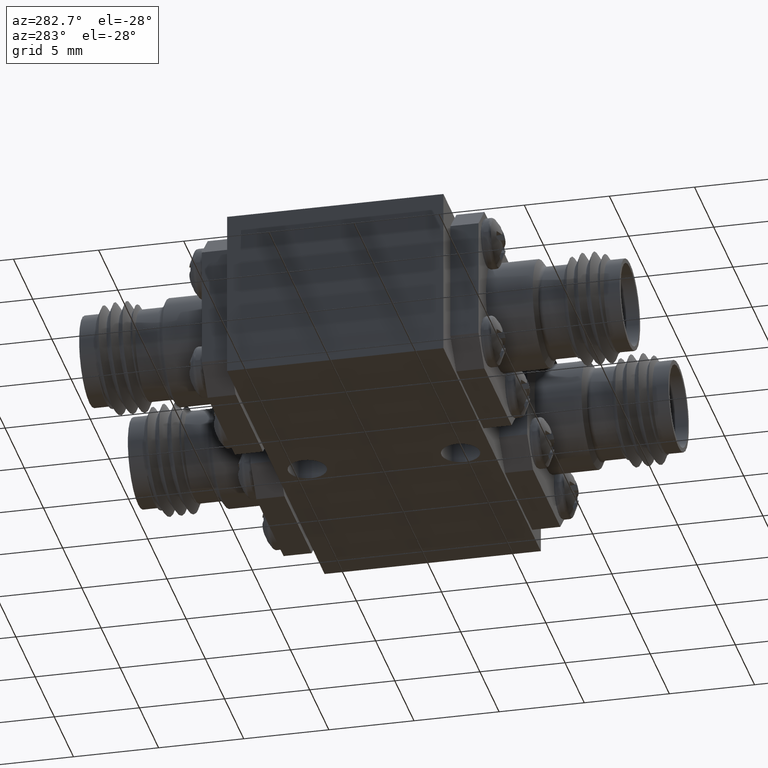
[diagram: clean part render]
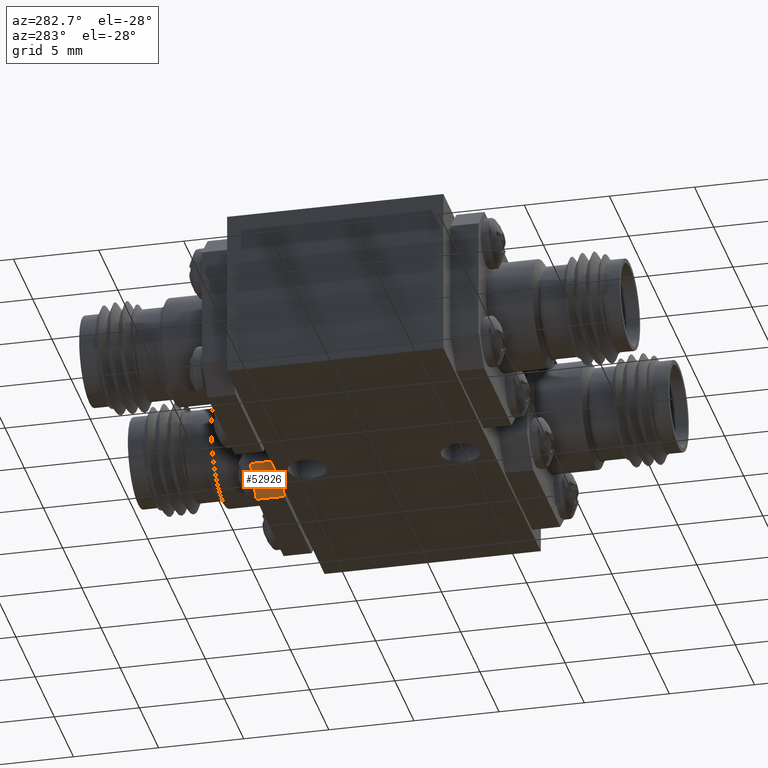
[diagram: same view with one face highlighted and labeled with its STEP entity id]
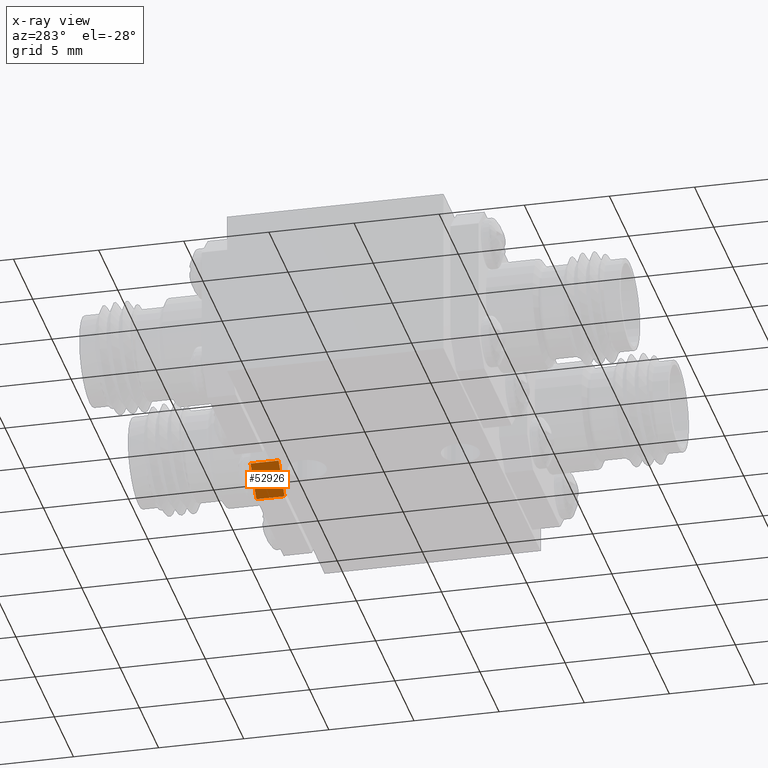
[diagram: x-ray of the same camera — body ghosted, the highlighted face saturated]
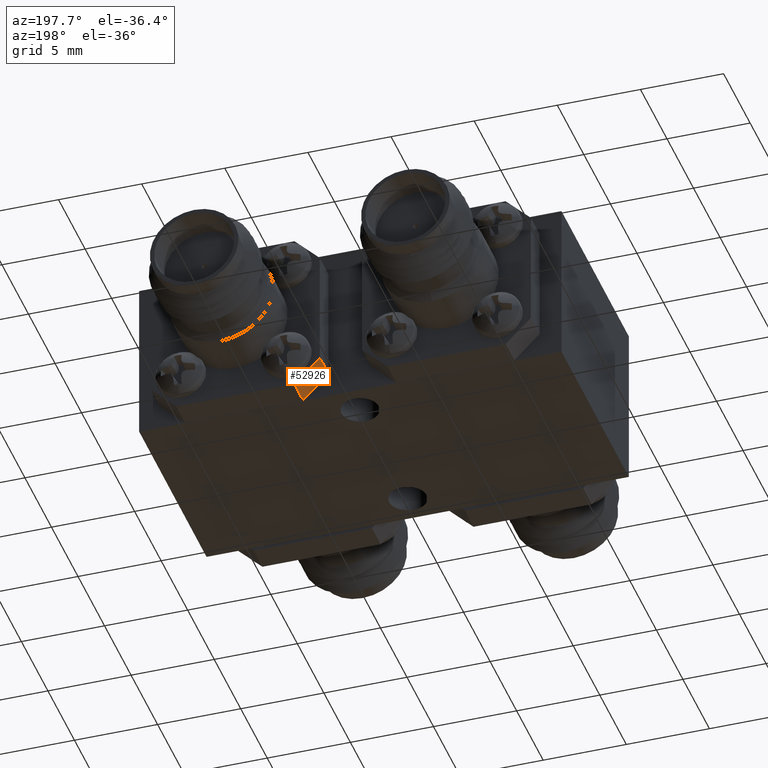
[diagram: same view with one face highlighted and labeled with its STEP entity id]
A machine part, auxiliary view. The second image highlights one B-rep face of the part: STEP entity #52926.
The next image is the same camera in x-ray: the body ghosted, the highlighted face saturated — about 0% of this face is hidden behind the body in this view.
A second angle (auxiliary view) of the same face is appended — the face is thin or edge-on in the first view.
In plain terms, the highlighted planar face has unit normal (0.7071, 0, 0.7071).
Its self-contained STEP definition (entity closure, byte-faithful):
#836 = CARTESIAN_POINT ( 'NONE',  ( 0.04999999999999987800, 0.2550000000000000600, 0.05685039370078730200 ) ) ;
#2436 = DIRECTION ( 'NONE',  ( 0.7071067811865491300, -0.0000000000000000000, -0.7071067811865459100 ) ) ;
#4158 = CARTESIAN_POINT ( 'NONE',  ( 0.04999999999999987800, 0.2550000000000000600, 0.05685039370078730200 ) ) ;
#4177 = VERTEX_POINT ( 'NONE', #4158 ) ;
#5296 = VECTOR ( 'NONE', #52508, 39.37007874015748100 ) ;
#6991 = VERTEX_POINT ( 'NONE', #74972 ) ;
#8964 = ORIENTED_EDGE ( 'NONE', *, *, #61376, .F. ) ;
#9071 = CARTESIAN_POINT ( 'NONE',  ( 0.1099999999999999900, 0.3200000000000000600, -0.003149606299212538500 ) ) ;
#13663 = VECTOR ( 'NONE', #17230, 39.37007874015748100 ) ;
#14314 = DIRECTION ( 'NONE',  ( 0.0000000000000000000, -1.000000000000000000, -0.0000000000000000000 ) ) ;
#14634 = EDGE_CURVE ( 'NONE', #20767, #6991, #54134, .T. ) ;
#15849 = DIRECTION ( 'NONE',  ( 0.7071067811865459100, 0.0000000000000000000, 0.7071067811865491300 ) ) ;
#17230 = DIRECTION ( 'NONE',  ( -0.7071067811865491300, -0.0000000000000000000, 0.7071067811865459100 ) ) ;
#20767 = VERTEX_POINT ( 'NONE', #45354 ) ;
#22454 = CARTESIAN_POINT ( 'NONE',  ( 0.04999999999999987800, 0.3200000000000000600, 0.05685039370078730200 ) ) ;
#27172 = FACE_OUTER_BOUND ( 'NONE', #58957, .T. ) ;
#28316 = EDGE_CURVE ( 'NONE', #4177, #20767, #52600, .T. ) ;
#30246 = VECTOR ( 'NONE', #14314, 39.37007874015748100 ) ;
#33199 = LINE ( 'NONE', #69792, #30246 ) ;
#39919 = VECTOR ( 'NONE', #2436, 39.37007874015748100 ) ;
#41020 = LINE ( 'NONE', #60623, #13663 ) ;
#44409 = VERTEX_POINT ( 'NONE', #66821 ) ;
#45354 = CARTESIAN_POINT ( 'NONE',  ( 0.1099999999999999900, 0.2550000000000000600, -0.003149606299212538500 ) ) ;
#50253 = EDGE_CURVE ( 'NONE', #6991, #44409, #41020, .T. ) ;
#52508 = DIRECTION ( 'NONE',  ( 0.0000000000000000000, 1.000000000000000000, 0.0000000000000000000 ) ) ;
#52600 = LINE ( 'NONE', #836, #39919 ) ;
#52926 = ADVANCED_FACE ( 'NONE', ( #27172 ), #59269, .F. ) ;
#54134 = LINE ( 'NONE', #9071, #5296 ) ;
#58957 = EDGE_LOOP ( 'NONE', ( #75387, #62369, #65956, #8964 ) ) ;
#59269 = PLANE ( 'NONE',  #78047 ) ;
#60623 = CARTESIAN_POINT ( 'NONE',  ( 0.08000000000000027900, 0.3200000000000000600, 0.02685039370078700500 ) ) ;
#61376 = EDGE_CURVE ( 'NONE', #44409, #4177, #33199, .T. ) ;
#62369 = ORIENTED_EDGE ( 'NONE', *, *, #14634, .F. ) ;
#65837 = DIRECTION ( 'NONE',  ( 0.0000000000000000000, -1.000000000000000000, 0.0000000000000000000 ) ) ;
#65956 = ORIENTED_EDGE ( 'NONE', *, *, #28316, .F. ) ;
#66821 = CARTESIAN_POINT ( 'NONE',  ( 0.04999999999999987800, 0.3200000000000000600, 0.05685039370078730200 ) ) ;
#69792 = CARTESIAN_POINT ( 'NONE',  ( 0.04999999999999987800, 0.3200000000000000600, 0.05685039370078730200 ) ) ;
#74972 = CARTESIAN_POINT ( 'NONE',  ( 0.1099999999999999900, 0.3200000000000000600, -0.003149606299212538500 ) ) ;
#75387 = ORIENTED_EDGE ( 'NONE', *, *, #50253, .F. ) ;
#78047 = AXIS2_PLACEMENT_3D ( 'NONE', #22454, #15849, #65837 ) ;